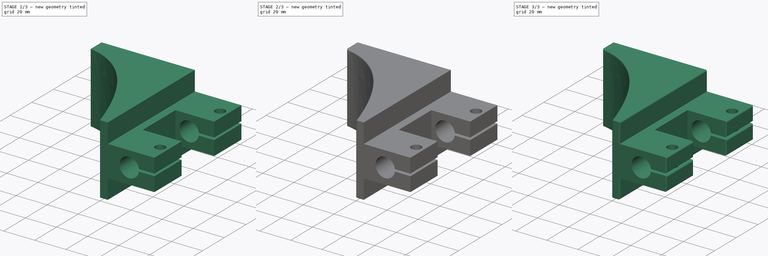
[diagram: build sequence overview — one tinted view per stage of 3, left to right]
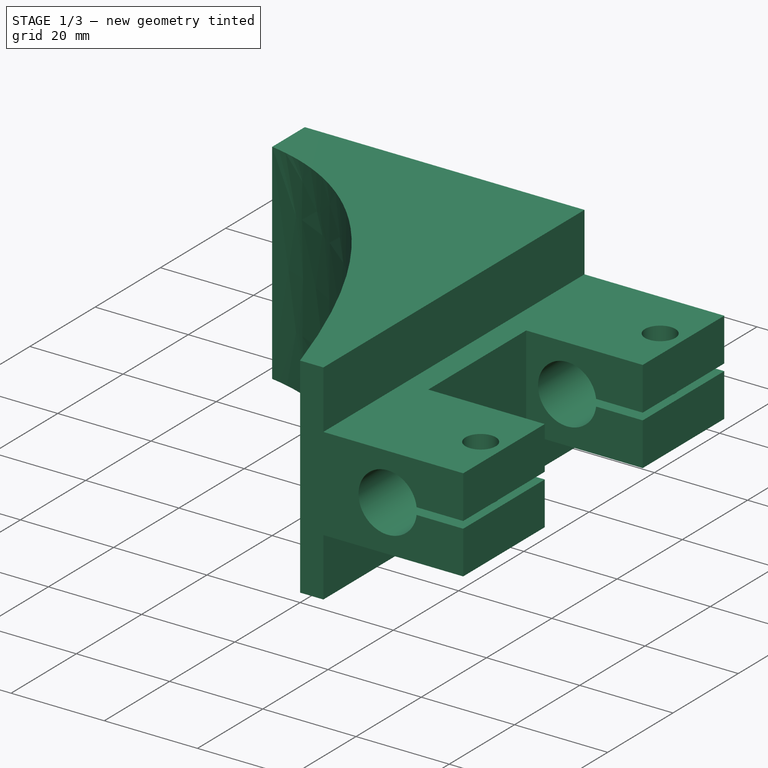
[diagram: stage 1 of 3 — iso view after this stage's code; geometry added in this stage tinted green]
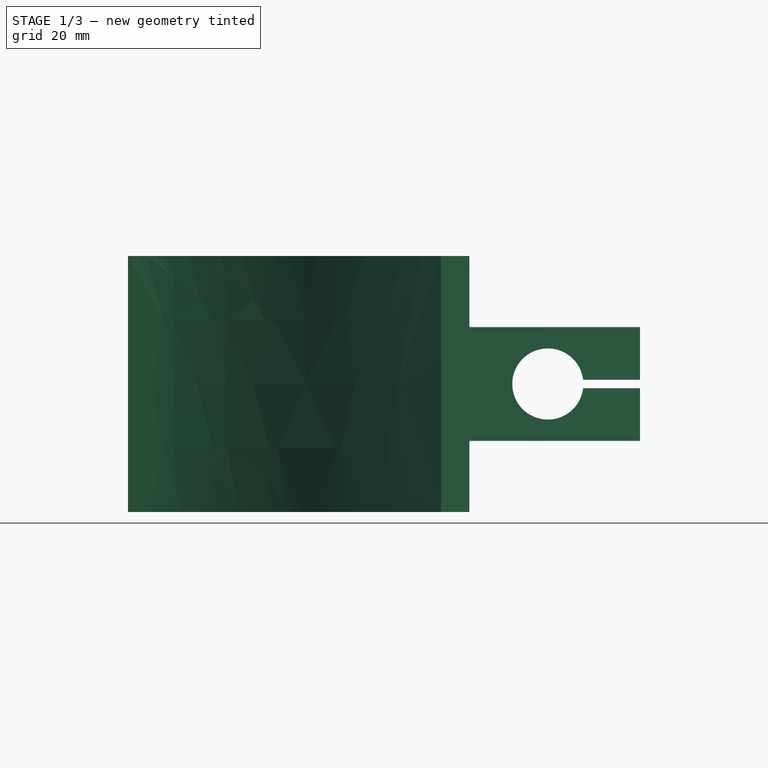
[diagram: stage 1 of 3 — front view after this stage's code; geometry added in this stage tinted green]
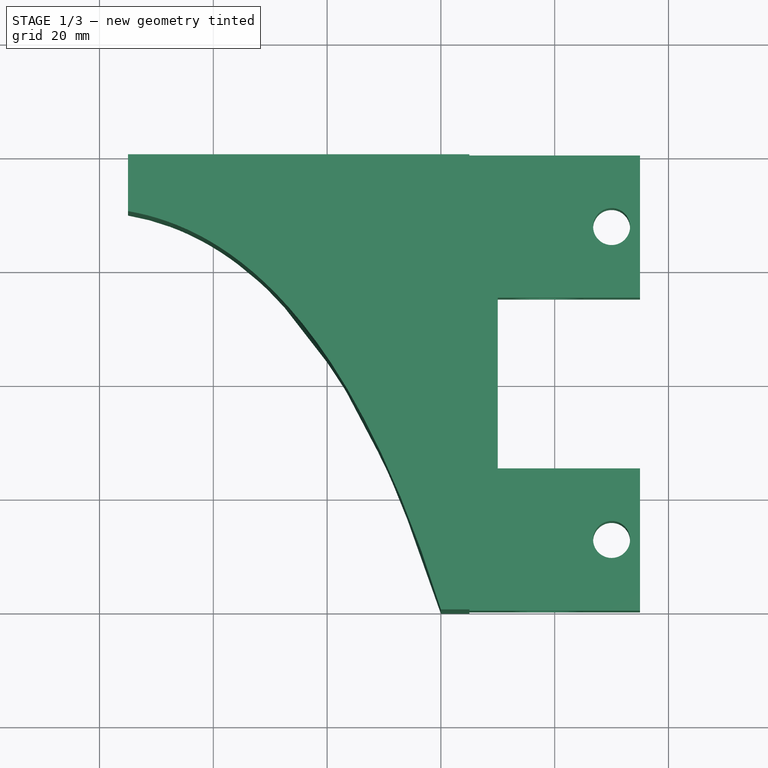
[diagram: stage 1 of 3 — top view after this stage's code; geometry added in this stage tinted green]
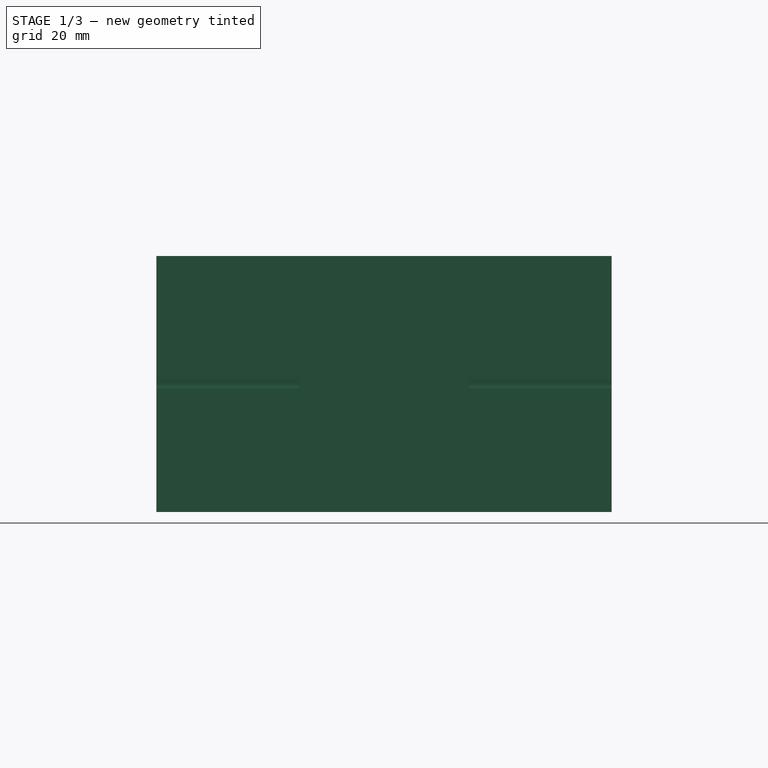
[diagram: stage 1 of 3 — right view after this stage's code; geometry added in this stage tinted green]
FCSTD DOCUMENT  (FreeCAD 0.17R13541 (Git))
Label: holder_platform
License: All rights reserved
LicenseURL: http://en.wikipedia.org/wiki/All_rights_reserved
objects: Sketcher::SketchObject×3, PartDesign::Fillet×3, PartDesign::Pocket×2, PartDesign::Pad×1, PartDesign::Body×1
note: 13 computed .brp shape members not serialized (recipe doc carries the construction recipe); baked Part::Feature solids carry a one-line shape summary decoded from their .brp

FEATURE [Sketcher::SketchObject] Sketch
  MapMode = 5
  Placement = pos=(0,0,0) rot=(1,0,0;1.5708rad)
  Support = -> [XZ_Plane]
  sketch-geometry (12):
    g0: LineSegment StartX=-15 StartY=10 StartZ=0 EndX=15 EndY=10 EndZ=0
    g1: LineSegment StartX=15 StartY=-10 StartZ=0 EndX=-15 EndY=-10 EndZ=0
    g2: LineSegment StartX=15 StartY=10 StartZ=0 EndX=15 EndY=0.75 EndZ=0
    g3: LineSegment StartX=15 StartY=0.75 StartZ=0 EndX=5 EndY=0.75 EndZ=0
    g4: LineSegment StartX=15 StartY=-10 StartZ=0 EndX=15 EndY=-0.75 EndZ=0
    g5: LineSegment StartX=15 StartY=-0.75 StartZ=0 EndX=5 EndY=-0.75 EndZ=0
    g6: ArcOfCircle CenterX=-1.20484 CenterY=0 CenterZ=0 NormalX=0 NormalY=0 NormalZ=1 AngleXU=0 Radius=6.25 StartAngle=0.12029 EndAngle=6.1629
    g7: LineSegment StartX=-15 StartY=10 StartZ=0 EndX=-15 EndY=22.5 EndZ=0
    g8: LineSegment StartX=-15 StartY=22.5 StartZ=0 EndX=-75 EndY=22.5 EndZ=0
    g9: LineSegment StartX=-75 StartY=22.5 StartZ=0 EndX=-75 EndY=-22.5 EndZ=0
    g10: LineSegment StartX=-75 StartY=-22.5 StartZ=0 EndX=-15 EndY=-22.5 EndZ=0
    g11: LineSegment StartX=-15 StartY=-22.5 StartZ=0 EndX=-15 EndY=-10 EndZ=0
  constraints (35):
    c: Horizontal(g0)
    c: Horizontal(g1)
    c: Symmetric(g0,g1,g-1)
    c: Symmetric(g0,g0,g-2)
    c: DistanceY(g1,g0) = 20
    c: DistanceX(g0,g0) = 30
    c: Coincident(g0,g2)
    c: Vertical(g2)
    c: Coincident(g2,g3)
    c: Horizontal(g3)
    c: Coincident(g1,g4)
    c: Vertical(g4)
    c: Coincident(g4,g5)
    c: Horizontal(g5)
    c: PointOnObject(g6,g-1)
    c: Coincident(g6,g5)
    c: Coincident(g6,g3)
    c: Radius(g6) = 6.25
    c: Symmetric(g2,g4,g-1)
    c: DistanceX(g5,g4) = 10
    c: DistanceY(g4,g2) = 1.5
    c: Coincident(g0,g7)
    c: Vertical(g7)
    c: Coincident(g7,g8)
    c: Horizontal(g8)
    c: Coincident(g8,g9)
    c: Vertical(g9)
    c: Coincident(g9,g10)
    c: Horizontal(g10)
    c: Coincident(g10,g11)
    c: Coincident(g11,g1)
    c: Vertical(g11)
    c: Symmetric(g10,g7,g-1)
    c: DistanceX(g8,g7) = 60
    c: DistanceY(g9,g8) = 45
FEATURE [PartDesign::Pad] Pad
  Length = 80
  Length2 = 100
  Placement = pos=(0,0,0) rot=(1,0,0;1.5708rad)
  Profile = -> Sketch
  Type = 0
FEATURE [Sketcher::SketchObject] Sketch001
  ExternalGeometry = -> [Pad]
  MapMode = 5
  Placement = pos=(0,0,-22.5) rot=(1,0,0;3.14159rad)
  Support = -> [Pad]
  sketch-geometry (14):
    g0: LineSegment StartX=15 StartY=55 StartZ=0 EndX=-10 EndY=55 EndZ=0
    g1: LineSegment StartX=-10 StartY=55 StartZ=0 EndX=-10 EndY=25 EndZ=0
    g2: LineSegment StartX=-10 StartY=25 StartZ=0 EndX=15 EndY=25 EndZ=0
    g3: LineSegment StartX=15 StartY=25 StartZ=0 EndX=15 EndY=55 EndZ=0
    g4: LineSegment StartX=-20 StartY=80 StartZ=0 EndX=-75 EndY=80 EndZ=0
    g5: LineSegment StartX=-75 StartY=80 StartZ=0 EndX=-75 EndY=10 EndZ=0
    g6: Circle [constr] CenterX=-75 CenterY=10 CenterZ=0 NormalX=0 NormalY=0 NormalZ=1 AngleXU=0 Radius=6
    g7: Circle [constr] CenterX=-40 CenterY=16 CenterZ=0 NormalX=0 NormalY=0 NormalZ=1 AngleXU=0 Radius=6
    g8: Circle [constr] CenterX=-20 CenterY=80 CenterZ=0 NormalX=0 NormalY=0 NormalZ=1 AngleXU=0 Radius=6
    g9: BSplineCurve PolesCount=3 KnotsCount=2 Degree=2 IsPeriodic=0
    g10: GeomPoint [constr] X=-75 Y=10 Z=0
    g11: GeomPoint [constr] X=-20 Y=80 Z=0
    g12: Circle CenterX=10 CenterY=12.5 CenterZ=0 NormalX=0 NormalY=0 NormalZ=1 AngleXU=0 Radius=3.25
    g13: Circle CenterX=10 CenterY=67.5 CenterZ=0 NormalX=0 NormalY=0 NormalZ=1 AngleXU=0 Radius=3.25
  constraints (36):
    c: Coincident(g0,g1)
    c: Coincident(g1,g2)
    c: Coincident(g2,g3)
    c: Coincident(g3,g0)
    c: Horizontal(g0)
    c: Horizontal(g2)
    c: Vertical(g1)
    c: Vertical(g3)
    c: PointOnObject(g0,g-3)
    c: DistanceY(g-3,g2) = 25
    c: DistanceY(g0,g-3) = 25
    c: DistanceX(g0,g0) = 25
    c: Coincident(g4,g-5)
    c: DistanceX(g4,g4) = 55
    c: Coincident(g5,g4)
    c: PointOnObject(g5,g-4)
    c: DistanceY(g-4,g5) = 10
    c: Coincident(g6,g5)
    c: Radius(g6) = 6
    c: Equal(g6,g7)
    c: Equal(g6,g8)
    c: Coincident(g8,g4)
    c: InternalAlignment(g6,g9)
    c: InternalAlignment(g7,g9)
    c: InternalAlignment(g8,g9)
    c: InternalAlignment(g10,g9)
    c: InternalAlignment(g11,g9)
    c: DistanceX(g7,g-1) = 40
    c: DistanceY(g-1,g7) = 16
    c: PointOnObject(g4,g-5)
    c: Radius(g13) = 3.25
    c: DistanceX(g13,g0) = 5
    c: DistanceY(g13,g-3) = 12.5
    c: Radius(g12) = 3.25
    c: DistanceX(g12,g-3) = 5
    c: DistanceY(g-3,g12) = 12.5
FEATURE [PartDesign::Pocket] Pocket
  BaseFeature = -> Pad
  Length = 5
  Length2 = 100
  Placement = pos=(0,0,0) rot=(1,0,0;1.5708rad)
  Profile = -> Sketch001
  Type = 1
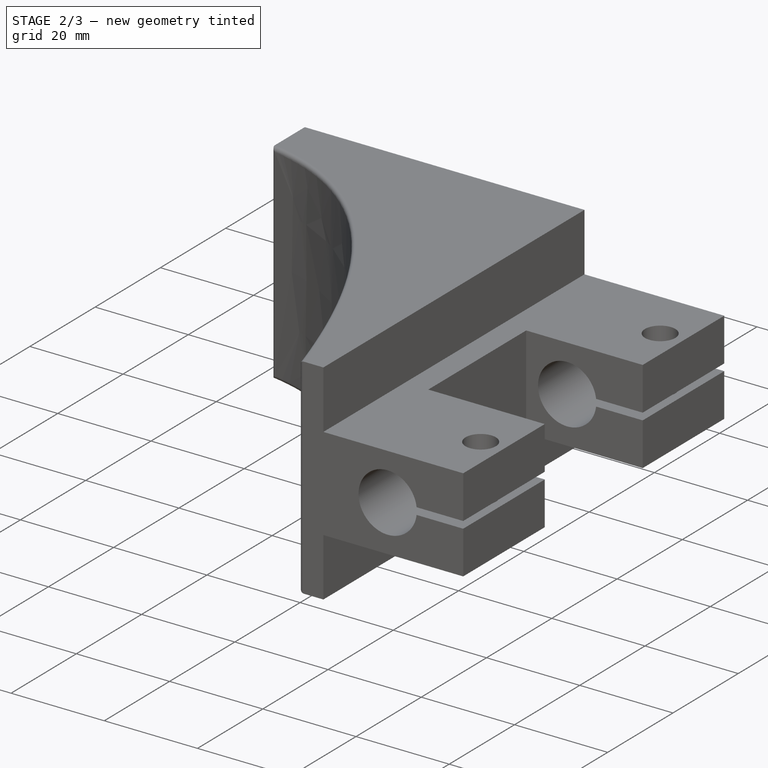
[diagram: stage 2 of 3 — iso view after this stage's code; geometry added in this stage tinted green]
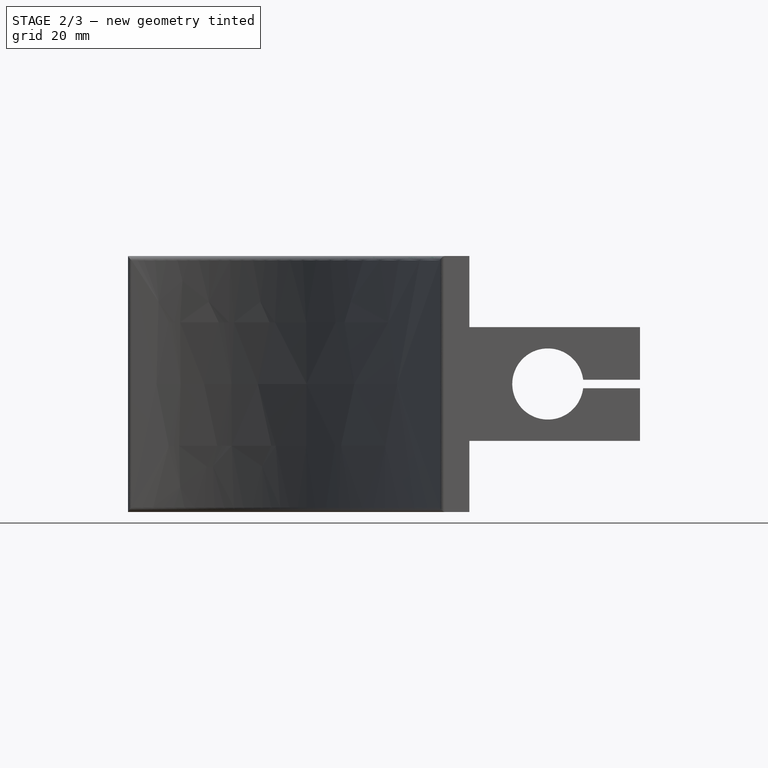
[diagram: stage 2 of 3 — front view after this stage's code; geometry added in this stage tinted green]
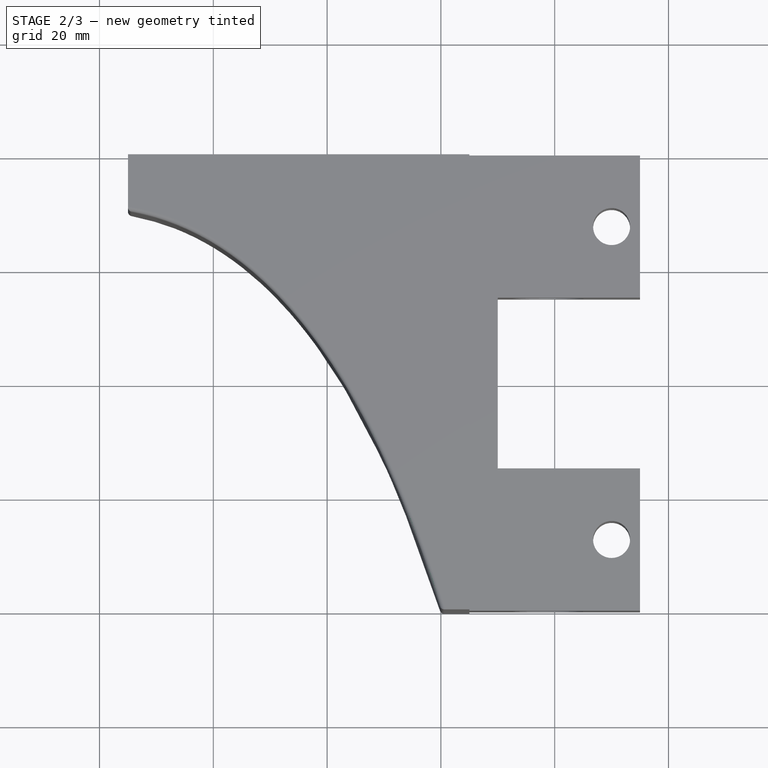
[diagram: stage 2 of 3 — top view after this stage's code; geometry added in this stage tinted green]
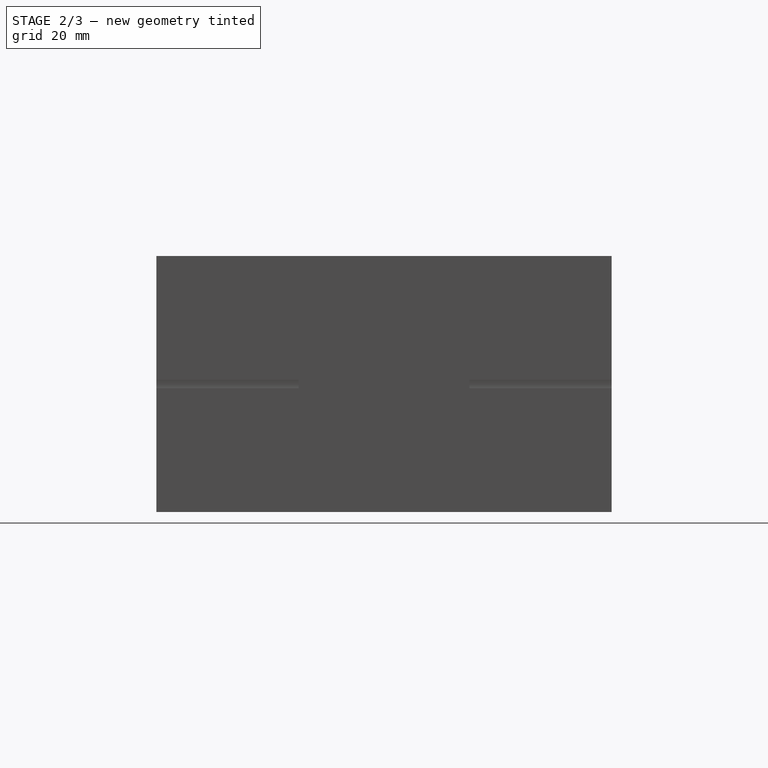
[diagram: stage 2 of 3 — right view after this stage's code; geometry added in this stage tinted green]
FEATURE [PartDesign::Fillet] Fillet
  Base = -> Pocket [Face25]
  BaseFeature = -> Pocket
  Placement = pos=(0,0,0) rot=(1,0,0;1.5708rad)
  Radius = 0.8
FEATURE [Sketcher::SketchObject] Sketch002
  ExternalGeometry = -> [Fillet]
  MapMode = 5
  Placement = pos=(0,0,0) rot=(-1,0,0;1.5708rad)
  Support = -> [Fillet]
  sketch-geometry (4):
    g0: LineSegment StartX=-71 StartY=18.5 StartZ=0 EndX=-19 EndY=18.5 EndZ=0
    g1: LineSegment StartX=-19 StartY=18.5 StartZ=0 EndX=-19 EndY=-18.5 EndZ=0
    g2: LineSegment StartX=-19 StartY=-18.5 StartZ=0 EndX=-71 EndY=-18.5 EndZ=0
    g3: LineSegment StartX=-71 StartY=-18.5 StartZ=0 EndX=-71 EndY=18.5 EndZ=0
  constraints (12):
    c: Coincident(g0,g1)
    c: Coincident(g1,g2)
    c: Coincident(g2,g3)
    c: Coincident(g3,g0)
    c: Horizontal(g0)
    c: Horizontal(g2)
    c: Vertical(g1)
    c: Vertical(g3)
    c: DistanceX(g-3,g0) = 4
    c: DistanceY(g0,g-3) = 4
    c: Symmetric(g0,g2,g-1)
    c: DistanceX(g0,g0) = 52
FEATURE [PartDesign::Pocket] Pocket001
  BaseFeature = -> Fillet
  Length = 8
  Length2 = 100
  Placement = pos=(0,0,0) rot=(1,0,0;1.5708rad)
  Profile = -> Sketch002
  Type = 0
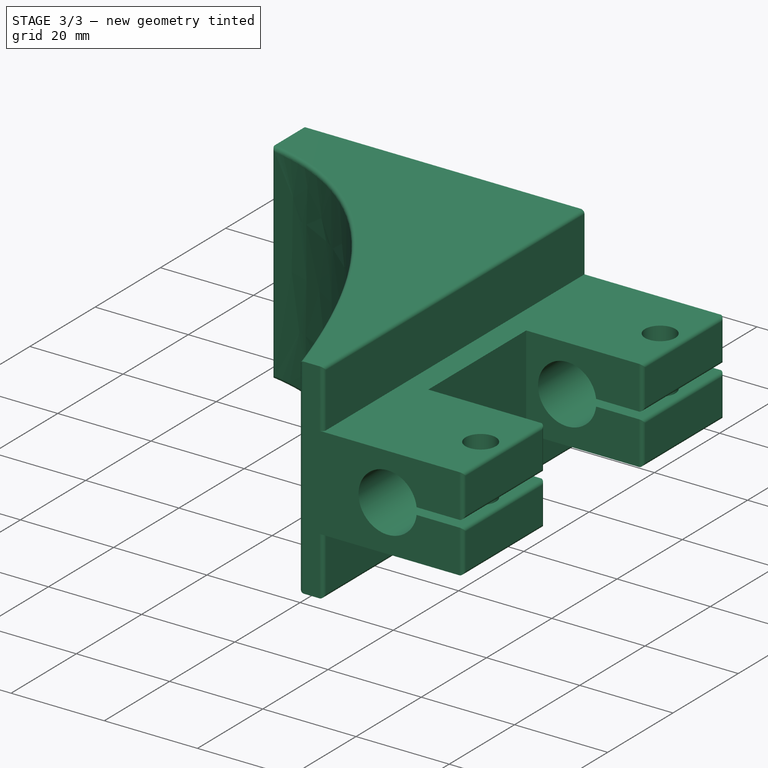
[diagram: stage 3 of 3 — iso view after this stage's code; geometry added in this stage tinted green]
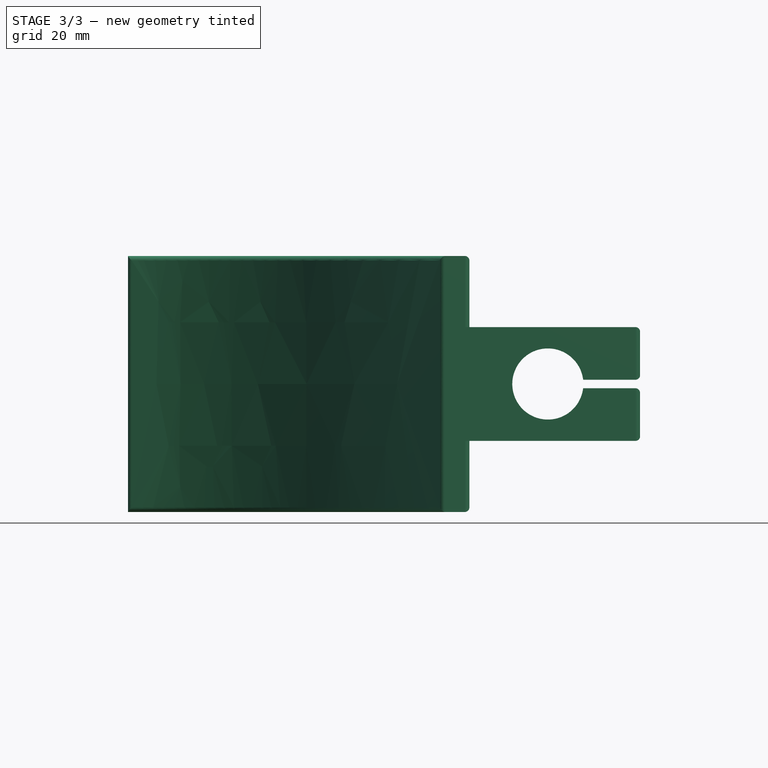
[diagram: stage 3 of 3 — front view after this stage's code; geometry added in this stage tinted green]
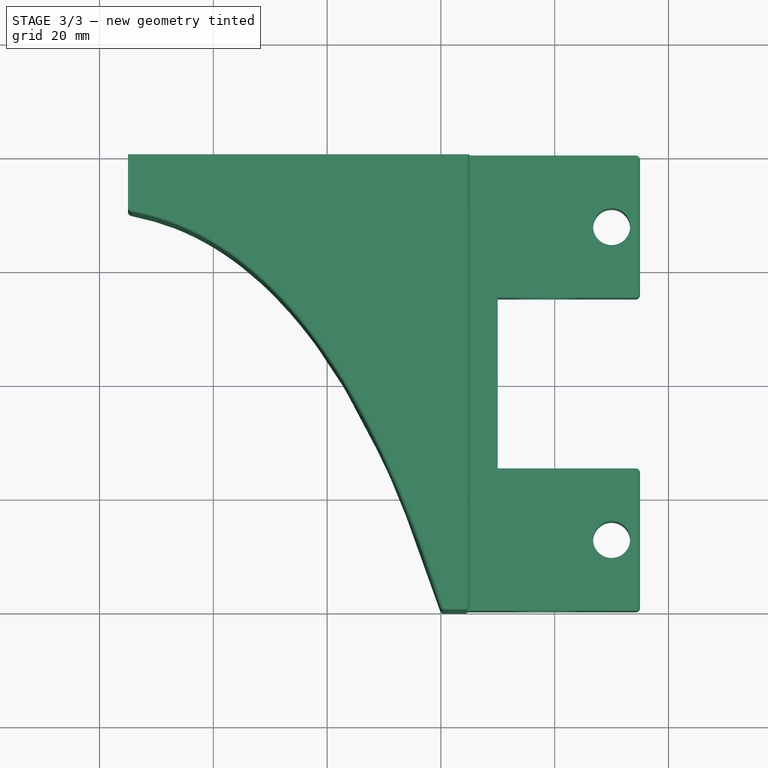
[diagram: stage 3 of 3 — top view after this stage's code; geometry added in this stage tinted green]
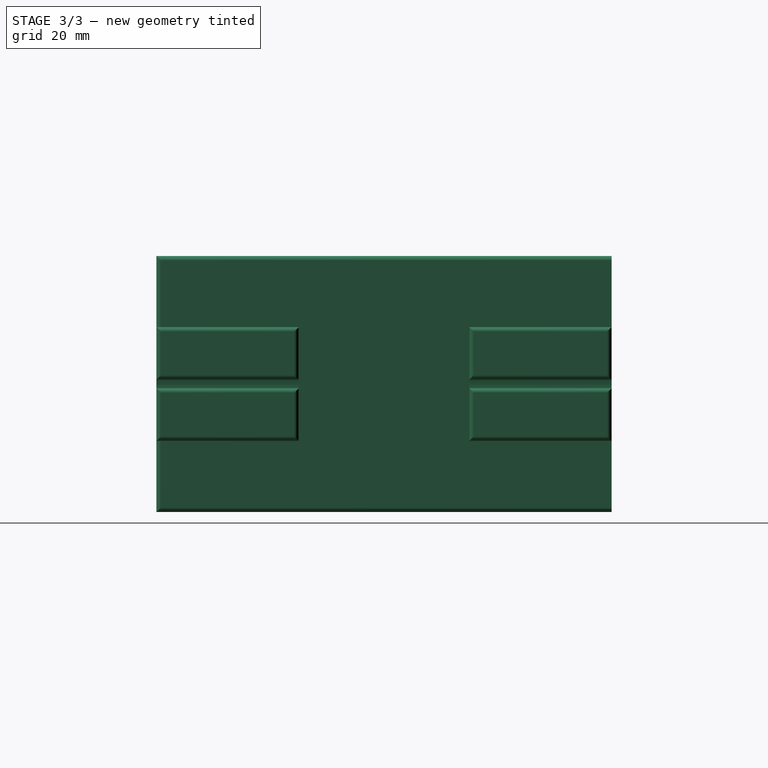
[diagram: stage 3 of 3 — right view after this stage's code; geometry added in this stage tinted green]
FEATURE [PartDesign::Fillet] Fillet001
  Base = -> Pocket001 [Face20,Face26,Face8,Face15]
  BaseFeature = -> Pocket001
  Placement = pos=(0,0,0) rot=(1,0,0;1.5708rad)
  Radius = 0.8
FEATURE [PartDesign::Fillet] Fillet002
  Base = -> Fillet001 [Edge27,Edge3,Edge14,Edge63]
  BaseFeature = -> Fillet001
  Placement = pos=(0,0,0) rot=(1,0,0;1.5708rad)
  Radius = 0.8
FEATURE [PartDesign::Body] Body
  Group = -> [Sketch,Pad,Sketch001,Pocket,Fillet,Sketch002,Pocket001,Fillet001,Fillet002]
  Origin = -> Origin
  Tip = -> Fillet002
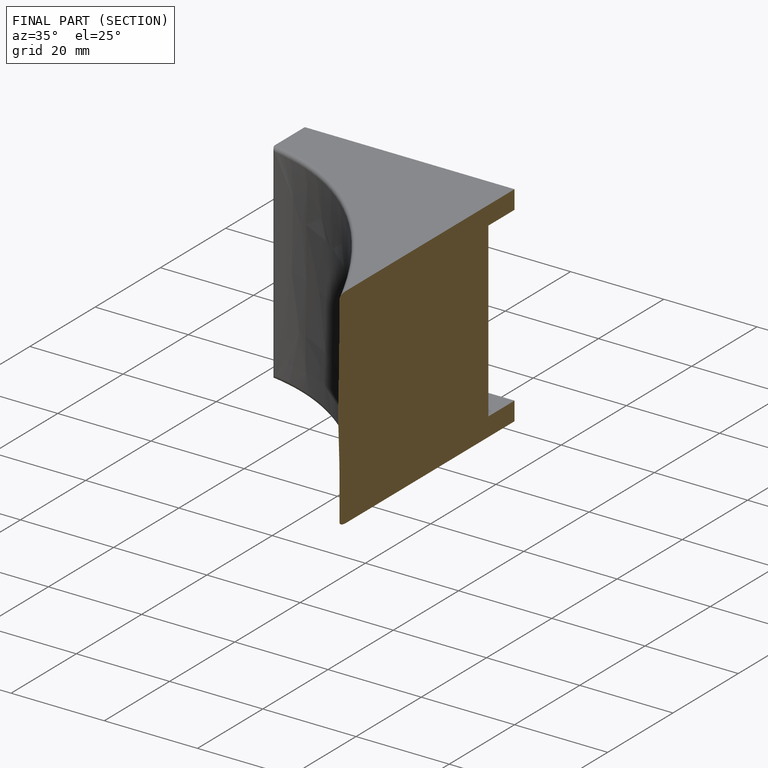
[diagram: finished part — half-section view (interior)]
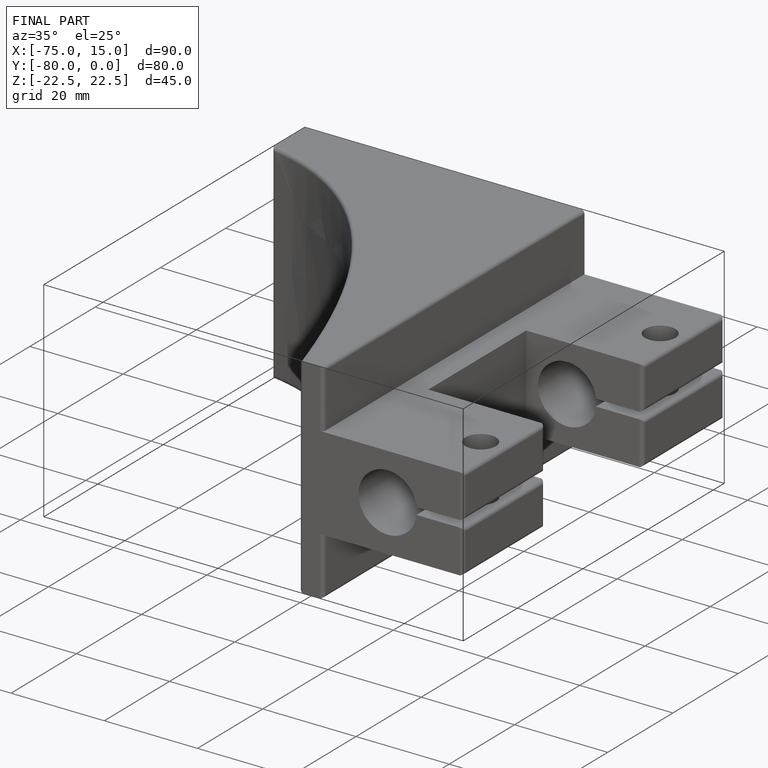
[diagram: finished part — iso view with bounding-box wireframe]
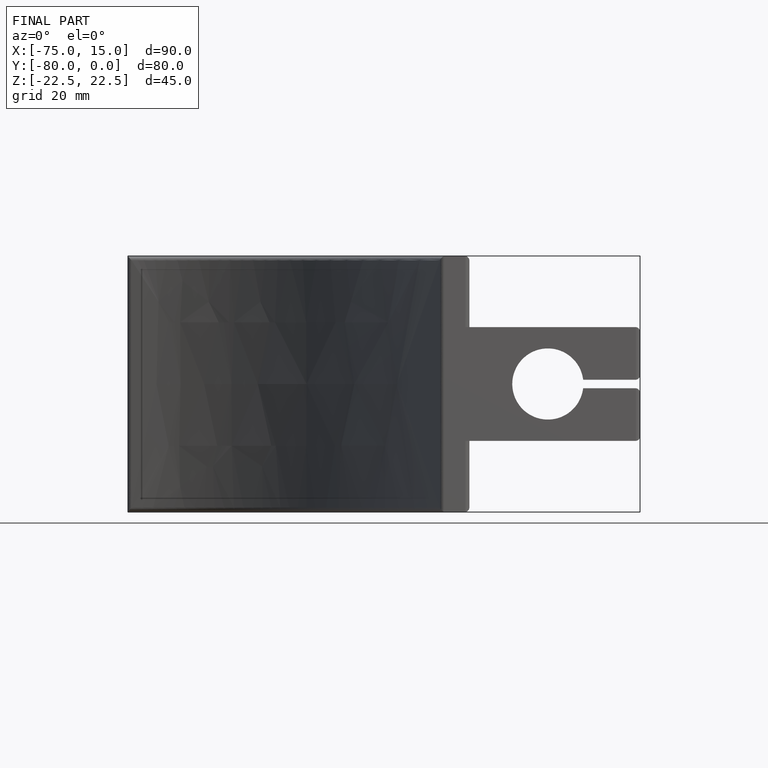
[diagram: finished part — front view with bounding-box wireframe]
